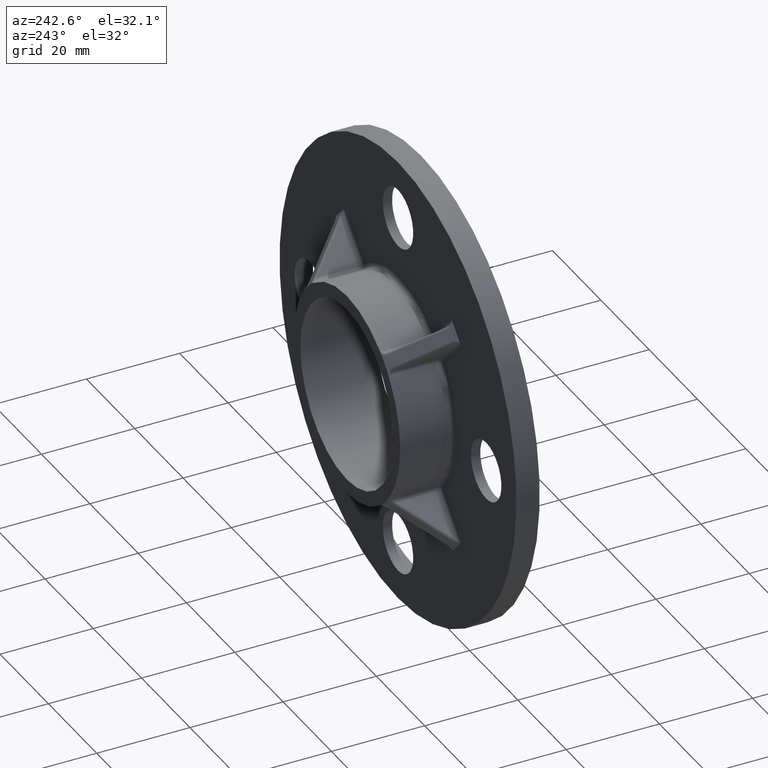
[diagram: clean part render]
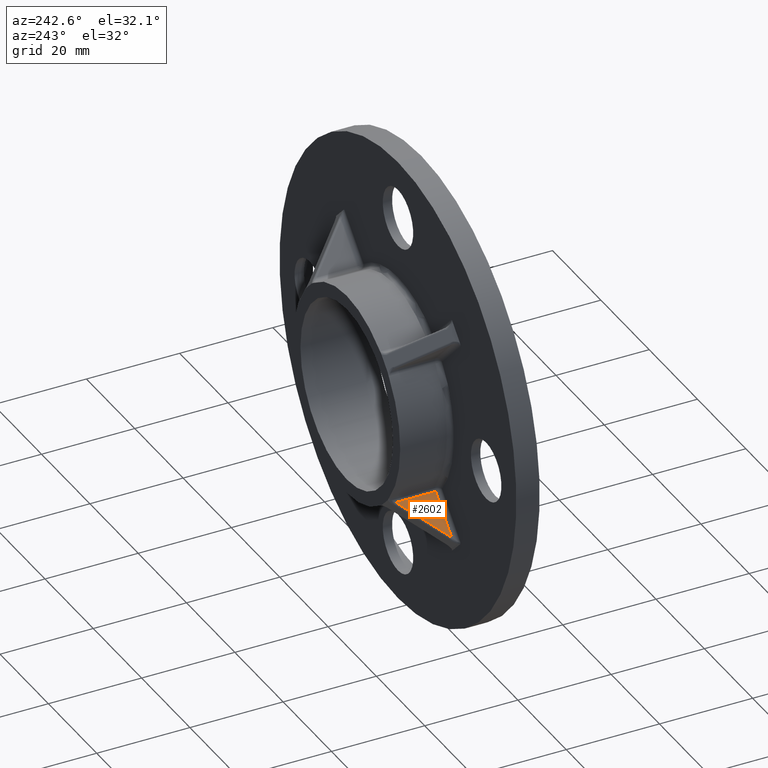
[diagram: same view with one face highlighted and labeled with its STEP entity id]
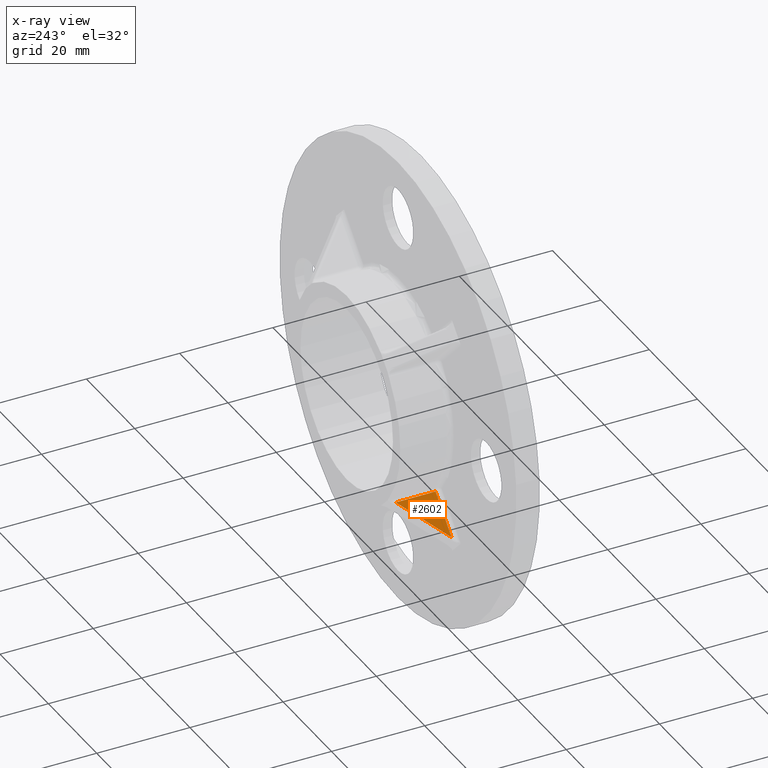
[diagram: x-ray of the same camera — body ghosted, the highlighted face saturated]
A machine part, auxiliary view. The second image highlights one B-rep face of the part: STEP entity #2602.
The next image is the same camera in x-ray: the body ghosted, the highlighted face saturated — about 0% of this face is hidden behind the body in this view.
In plain terms, the highlighted planar face has unit normal (-0.7071, 0, 0.7071).
Its self-contained STEP definition (entity closure, byte-faithful):
#117 = CARTESIAN_POINT ( 'NONE',  ( -17.49105184959663400, 16.00000000000000000, -15.01617811544342200 ) ) ;
#212 = EDGE_CURVE ( 'NONE', #376, #550, #1751, .T. ) ;
#376 = VERTEX_POINT ( 'NONE', #3131 ) ;
#443 = ORIENTED_EDGE ( 'NONE', *, *, #212, .T. ) ;
#474 = CARTESIAN_POINT ( 'NONE',  ( -17.49105184959663400, 14.55530662478133900, -15.01617811544342200 ) ) ;
#475 = DIRECTION ( 'NONE',  ( 0.7071067811865474600, -0.0000000000000000000, 0.7071067811865474600 ) ) ;
#550 = VERTEX_POINT ( 'NONE', #3528 ) ;
#873 = PLANE ( 'NONE',  #1797 ) ;
#1133 = CARTESIAN_POINT ( 'NONE',  ( -1.237436867076604900, 16.00000000000000000, 1.237436867076604900 ) ) ;
#1351 = FACE_OUTER_BOUND ( 'NONE', #2091, .T. ) ;
#1533 = CARTESIAN_POINT ( 'NONE',  ( -16.85089260243511300, 6.000000000000000000, -14.37601886828190500 ) ) ;
#1535 = DIRECTION ( 'NONE',  ( -0.0000000000000000000, 1.000000000000000000, -0.0000000000000000000 ) ) ;
#1596 = VERTEX_POINT ( 'NONE', #474 ) ;
#1648 = VECTOR ( 'NONE', #1535, 1000.000000000000000 ) ;
#1751 = LINE ( 'NONE', #1533, #1927 ) ;
#1782 = VECTOR ( 'NONE', #3450, 1000.000000000000000 ) ;
#1797 = AXIS2_PLACEMENT_3D ( 'NONE', #1133, #2304, #3057 ) ;
#1880 = ORIENTED_EDGE ( 'NONE', *, *, #2061, .T. ) ;
#1927 = VECTOR ( 'NONE', #475, 1000.000000000000100 ) ;
#2010 = EDGE_CURVE ( 'NONE', #1596, #376, #2604, .T. ) ;
#2061 = EDGE_CURVE ( 'NONE', #550, #1596, #2955, .T. ) ;
#2091 = EDGE_LOOP ( 'NONE', ( #1880, #2838, #443 ) ) ;
#2304 = DIRECTION ( 'NONE',  ( -0.7071067811865475700, 0.0000000000000000000, 0.7071067811865475700 ) ) ;
#2327 = CARTESIAN_POINT ( 'NONE',  ( -8.150050018829082500, 26.66463047706943400, -5.675176284675872700 ) ) ;
#2602 = ADVANCED_FACE ( 'NONE', ( #1351 ), #873, .T. ) ;
#2604 = LINE ( 'NONE', #2327, #1782 ) ;
#2838 = ORIENTED_EDGE ( 'NONE', *, *, #2010, .T. ) ;
#2955 = LINE ( 'NONE', #117, #1648 ) ;
#3057 = DIRECTION ( 'NONE',  ( 0.7071067811865474600, 0.0000000000000000000, 0.7071067811865474600 ) ) ;
#3131 = CARTESIAN_POINT ( 'NONE',  ( -24.09052311815636200, 6.000000000000000000, -21.61564938400314900 ) ) ;
#3450 = DIRECTION ( 'NONE',  ( -0.5212466913156832400, -0.6757246285173462700, -0.5212466913156832400 ) ) ;
#3528 = CARTESIAN_POINT ( 'NONE',  ( -17.49105184959663000, 6.000000000000000000, -15.01617811544341800 ) ) ;